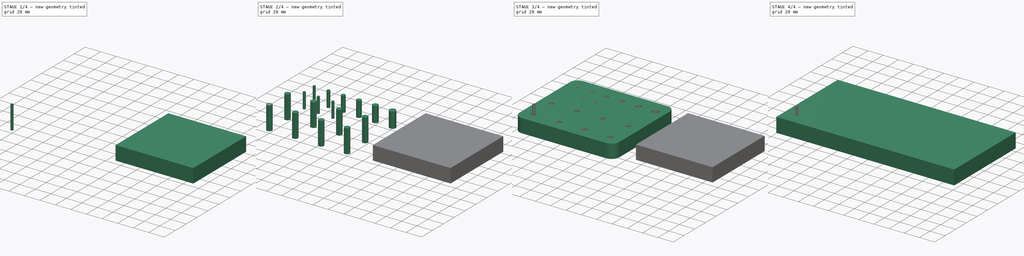
[diagram: build sequence overview — one tinted view per stage of 4, left to right]
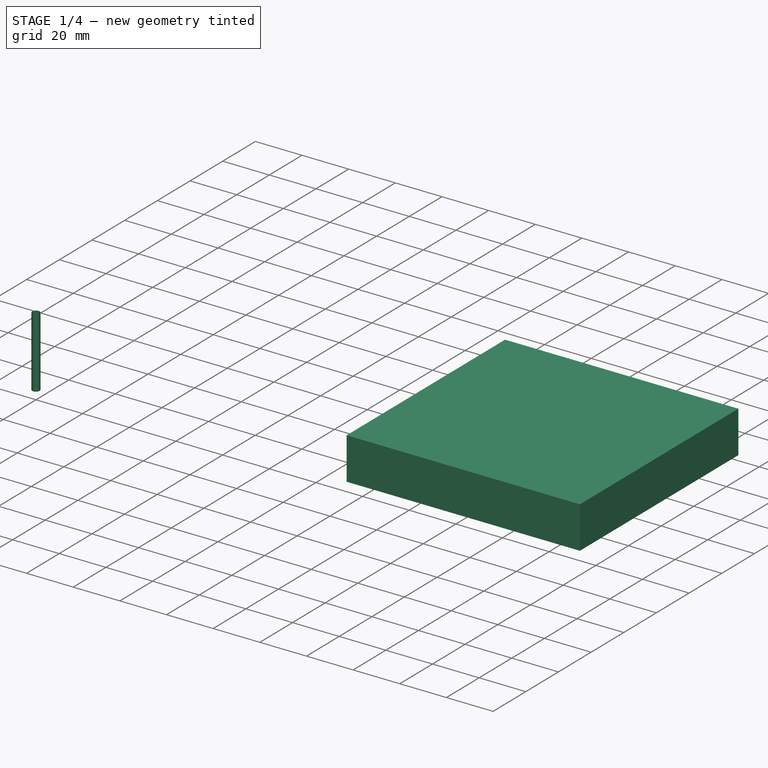
[diagram: stage 1 of 4 — iso view after this stage's code; geometry added in this stage tinted green]
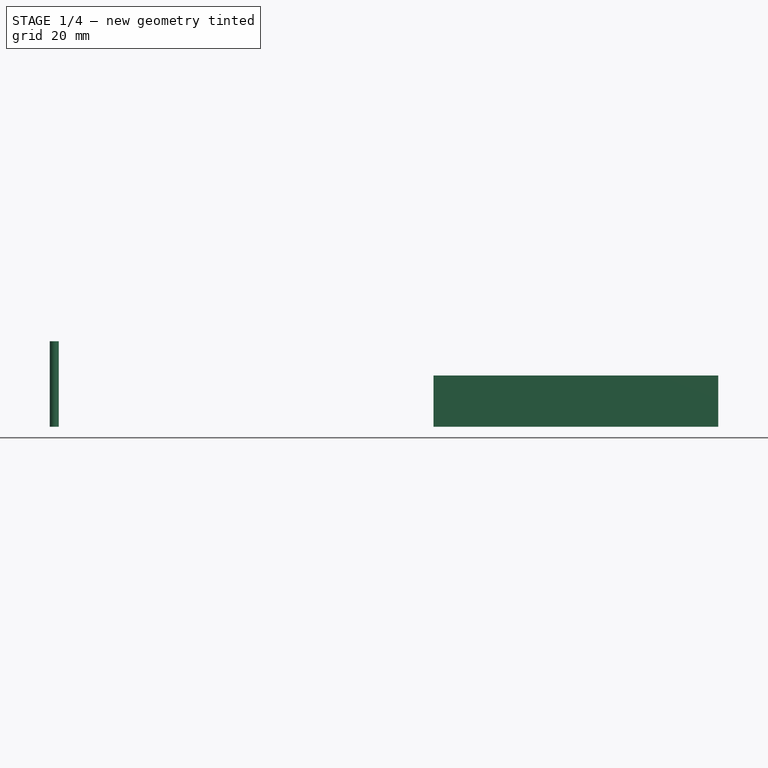
[diagram: stage 1 of 4 — front view after this stage's code; geometry added in this stage tinted green]
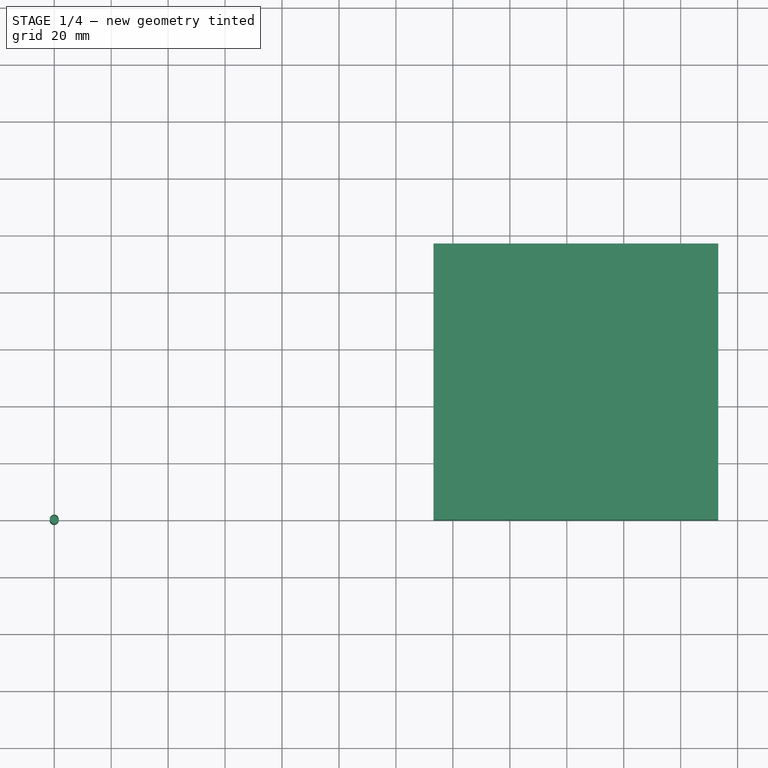
[diagram: stage 1 of 4 — top view after this stage's code; geometry added in this stage tinted green]
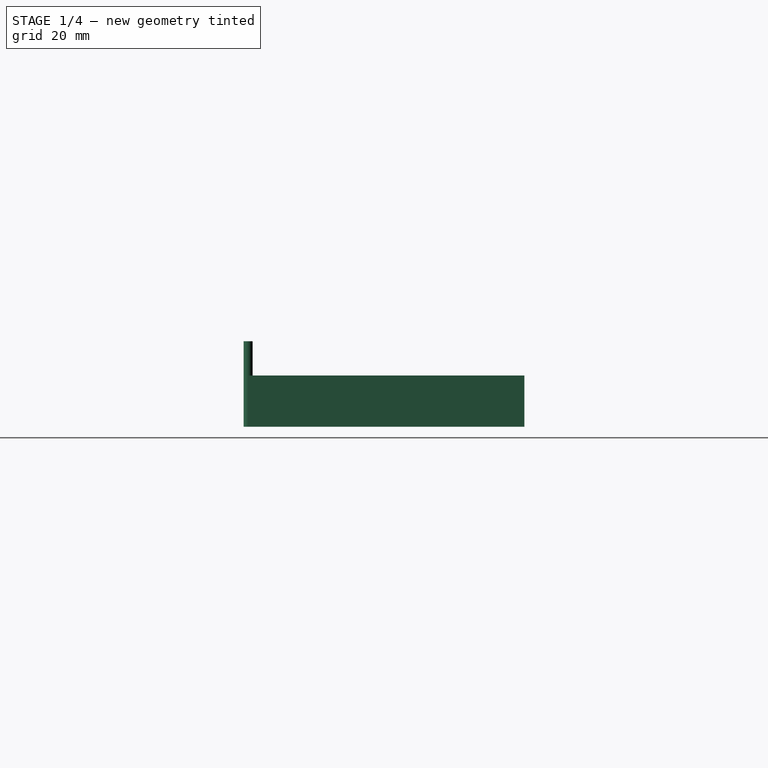
[diagram: stage 1 of 4 — right view after this stage's code; geometry added in this stage tinted green]
FCSTD DOCUMENT  (FreeCAD 0.22R34651 (Git))
Label: tools_panel1
License: All rights reserved
LicenseURL: http://en.wikipedia.org/wiki/All_rights_reserved
objects: Part::FeaturePython×8, Path::FeaturePython×6, Sketcher::SketchObject×3, App::DocumentObjectGroup×3, Part::Extrusion×2, PartDesign::Body×2, PartDesign::Pad×1, Part::Compound×1, PartDesign::Boolean×1, App::FeaturePython×1, App::Link×1
note: 21 computed .brp shape members not serialized (recipe doc carries the construction recipe); baked Part::Feature solids carry a one-line shape summary decoded from their .brp
EXTERNAL_REF file=../../../../mnt/share/Public/Documents/Детали_freecad/Крепление двигателя отводного вала отрезного станка.FCStd obj=Body002

FEATURE [Part::FeaturePython] ToolBit  label="3.175mm Endmill"  # Path/CAM toolbit (typed FeaturePython)
  BitPropertyNames = Chipload | CuttingEdgeHeight | Diameter | Flutes | Length | Material | ShankDiameter | SpindleDirection
  BitShape = <path>
  Chipload = 0
  CuttingEdgeHeight = 30
  Diameter = 3.17
  Flutes = 0
  Length = 10
  Material = 0
  ShankDiameter = 3
  ShapeName = endmill
  SpindleDirection = 0
FEATURE [Path::FeaturePython] __175mm_Endmill  label="3.175mm Endmill001"  # Path/CAM operation (typed FeaturePython)
  HorizFeed = 51.6667
  HorizRapid = 0
  SpindleDir = 0
  SpindleSpeed = 18000
  Tool = -> ToolBit
  ToolNumber = 1
  VertFeed = 16.6667
  VertRapid = 0
  expr: HorizRapid = SetupSheet.HorizRapid
  expr: VertRapid = SetupSheet.VertRapid
FEATURE [App::DocumentObjectGroup] Tools
  Group = -> [__175mm_Endmill]
FEATURE [Path::FeaturePython] Profile  # Path/CAM operation (typed FeaturePython)
  Active = true
  AreaParams:
    Tolerance = 1e-07
    FitArcs = True
    Simplify = False
    CleanDistance = 0.0
    Accuracy = 0.01
    Unit = 1.0
    MinArcPoints = 4
    MaxArcPoints = 100
    ClipperScale = 10000000.0
    Fill = 0
    Coplanar = 0
    Reorient = True
    Outline = False
    Explode = False
    OpenMode = 0
    Deflection = 0.01
    SubjectFill = 0
    ClipFill = 0
    Offset = -1.585
    ExtraPass = 0
    Stepover = 0.0
    LastStepover = 0.0
    JoinType = 0
    EndType = 0
    MiterLimit = 2.0
    RoundPrecision = 0.0
    PocketMode = 0
    ToolRadius = 1.0
    PocketExtraOffset = 0.0
    PocketStepover = 0.0
    PocketLastStepover = 0.0
    FromCenter = False
    Angle = 45.0
    AngleShift = 0.0
    Shift = 0.0
    Thicken = False
    SectionCount = -1
    Stepdown = 1.0
    SectionOffset = 0.0
    SectionTolerance = 1e-07
    SectionMode = 2
    Project = False
  Base = -> [Clone]
  ClearanceHeight = 24
  CoolantMode = 0
  CycleTime = 00:01:12
  Direction = 1
  FinalDepth = 0
  HandleMultipleFeatures = 0
  JoinType = 0
  MiterLimit = 0.1
  OffsetExtra = 0
  OpFinalDepth = 0
  OpStartDepth = 19
  OpStockZMax = 19
  OpStockZMin = 0
  OpToolDiameter = 3.17
  PathParams = {'orientation': 1, 'feedrate': 51.666666666666664, 'feedrate_v': 16.666666666666668, 'verbose': True, 'resume_height': 22.0, 'retraction': 24.0, 'return_end': True, 'preamble': False, 'start': Vector (79.74409036666665, 15.000000000000004, 24.0)}
  SafeHeight = 22
  Side = 0
  SplitArcs = false
  StartDepth = 19
  StartPoint = (0,0,0)
  StepDown = 3.17
  ToolController = -> __175mm_Endmill
  UseComp = true
  UseStartPoint = false
  processCircles = true
  processHoles = true
  processPerimeter = false
  expr: ClearanceHeight = OpStockZMax + SetupSheet.ClearanceHeightOffset
  expr: FinalDepth = OpFinalDepth
  expr: SafeHeight = OpStockZMax + SetupSheet.SafeHeightOffset
  expr: StartDepth = OpStartDepth
  expr: StepDown = OpToolDiameter
FEATURE [Path::FeaturePython] Profile001  # Path/CAM operation (typed FeaturePython)
  Active = true
  AreaParams:
    Tolerance = 1e-07
    FitArcs = True
    Simplify = False
    CleanDistance = 0.0
    Accuracy = 0.01
    Unit = 1.0
    MinArcPoints = 4
    MaxArcPoints = 100
    ClipperScale = 10000000.0
    Fill = 0
    Coplanar = 0
    Reorient = True
    Outline = False
    Explode = False
    OpenMode = 0
    Deflection = 0.01
    SubjectFill = 0
    ClipFill = 0
    Offset = 1.585
    ExtraPass = 0
    Stepover = 0.0
    LastStepover = 0.0
    JoinType = 0
    EndType = 0
    MiterLimit = 2.0
    RoundPrecision = 0.0
    PocketMode = 0
    ToolRadius = 1.0
    PocketExtraOffset = 0.0
    PocketStepover = 0.0
    PocketLastStepover = 0.0
    FromCenter = False
    Angle = 45.0
    AngleShift = 0.0
    Shift = 0.0
    Thicken = False
    SectionCount = -1
    Stepdown = 1.0
    SectionOffset = 0.0
    SectionTolerance = 1e-07
    SectionMode = 2
    Project = False
  ClearanceHeight = 24
  CoolantMode = 0
  CycleTime = 00:01:51
  Direction = 1
  FinalDepth = 0
  HandleMultipleFeatures = 0
  JoinType = 0
  MiterLimit = 0.1
  OffsetExtra = 0
  OpFinalDepth = 0
  OpStartDepth = 19
  OpStockZMax = 19
  OpStockZMin = 0
  OpToolDiameter = 3.17
  PathParams = {'orientation': 0, 'feedrate': 51.666666666666664, 'feedrate_v': 16.666666666666668, 'verbose': True, 'resume_height': 22.0, 'retraction': 24.0, 'return_end': True, 'preamble': False, 'start': Vector (128.1907173591758, 112.19109730355466, 24.0)}
  SafeHeight = 22
  Side = 0
  SplitArcs = false
  StartDepth = 19
  StartPoint = (0,0,0)
  StepDown = 3.17
  ToolController = -> __175mm_Endmill
  UseComp = true
  UseStartPoint = false
  processCircles = true
  processHoles = true
  processPerimeter = true
  expr: ClearanceHeight = OpStockZMax + SetupSheet.ClearanceHeightOffset
  expr: FinalDepth = OpFinalDepth
  expr: SafeHeight = OpStockZMax + SetupSheet.SafeHeightOffset
  expr: StartDepth = OpStartDepth
  expr: StepDown = OpToolDiameter
FEATURE [Path::FeaturePython] DressupDogbone  # Path/CAM operation (typed FeaturePython)
  Base = -> Profile
  Custom = 0
  Incision = 0
  Side = 0
  Style = 0
FEATURE [Path::FeaturePython] DressupTag  # Path/CAM operation (typed FeaturePython)
  Angle = 45
  Base = -> Profile001
  Height = 3.5
  Positions = (6) [(103.611,115.585,0),(131.585,13.3439,0),(131.584,93.1585,0),(234.785,9.2517,0),(234.785,86.5052,0),(13.2326,115.584,0)]
  Radius = 0
  SegmentationFactor = 50
  Width = 10
FEATURE [App::DocumentObjectGroup] Operations
  Group = -> [DressupDogbone,DressupTag]
FEATURE [App::Link] Link  label="Body002"
  LinkedObject = -> <external ../../../../mnt/share/Public/Documents/Детали_freecad/Крепление двигателя отводного вала отрезного станка.FCStd>#Body002
FEATURE [Part::FeaturePython] Clone001  label="Model-Body002"  # Draft clone (typed FeaturePython)
  AttacherType = Attacher::AttachEngine3D
  Fuse = false
  Objects = -> [Link]
  PathResource = Model
  Placement = pos=(133.2,0,0) rot=(0,0,1;0rad)
  Scale = (1,1,1)
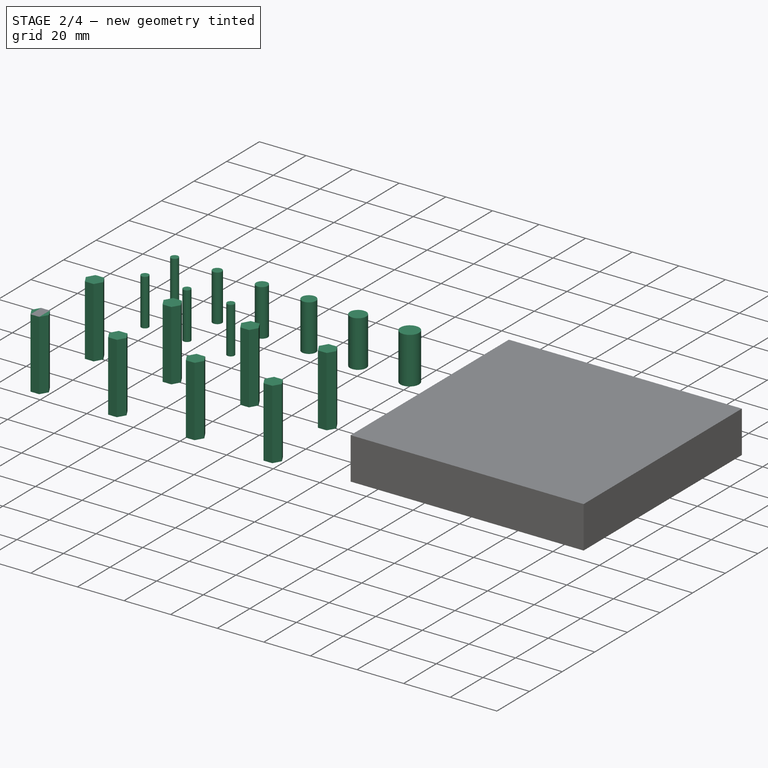
[diagram: stage 2 of 4 — iso view after this stage's code; geometry added in this stage tinted green]
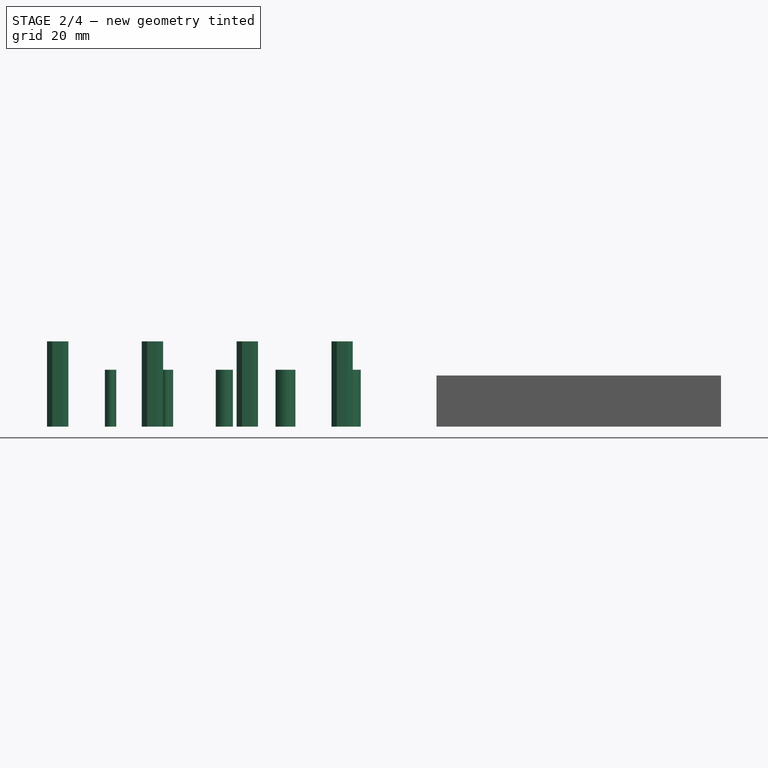
[diagram: stage 2 of 4 — front view after this stage's code; geometry added in this stage tinted green]
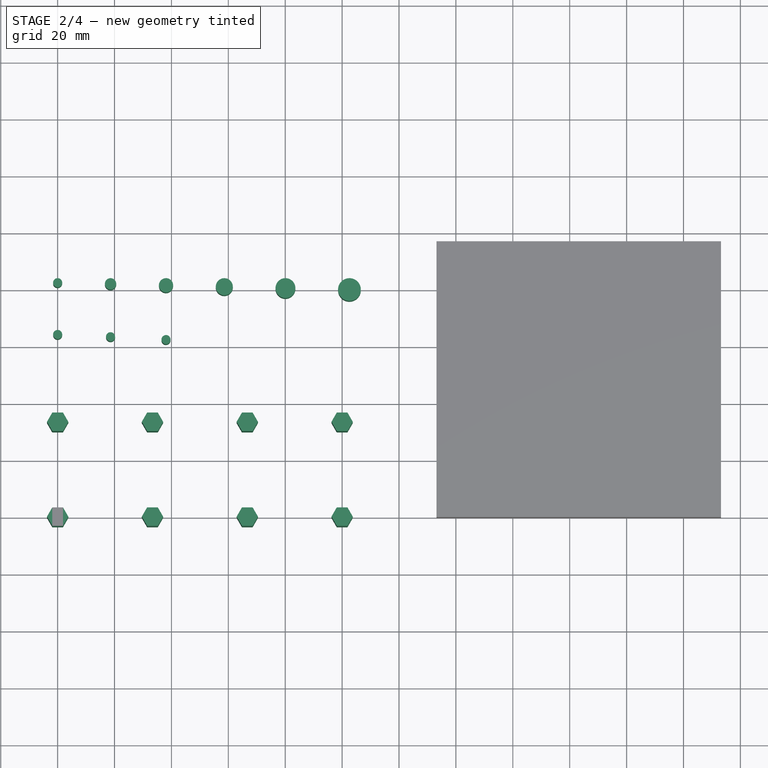
[diagram: stage 2 of 4 — top view after this stage's code; geometry added in this stage tinted green]
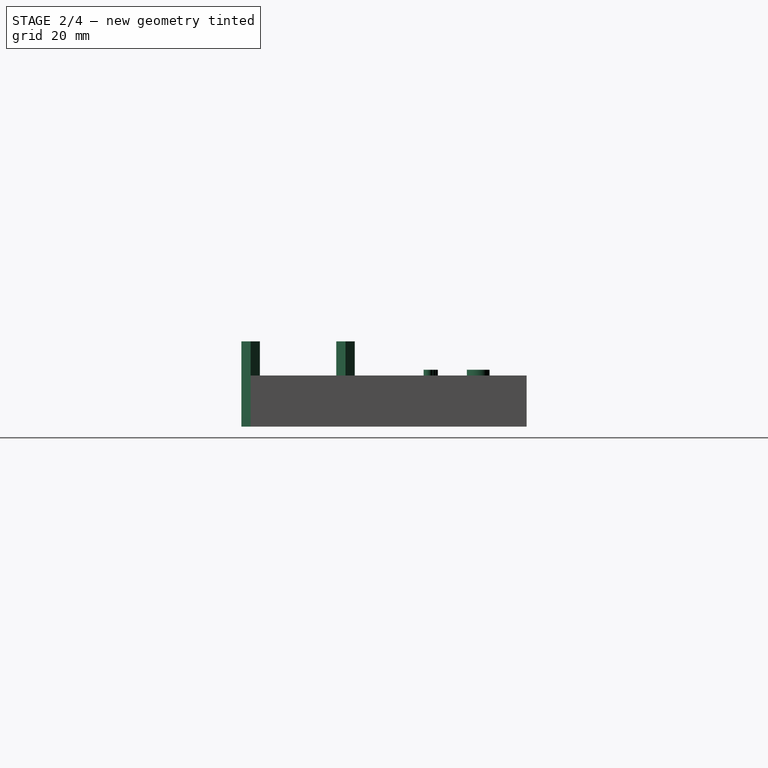
[diagram: stage 2 of 4 — right view after this stage's code; geometry added in this stage tinted green]
FEATURE [Sketcher::SketchObject] Sketch
  FullyConstrained = true
  MapMode = 5
  Support = -> [XY_Plane]
  expr: Constraints[7] = <<Sketch001>>.Placement.Base.y + 15 mm
  sketch-geometry (12):
    g0: LineSegment StartX=-5 StartY=-15 StartZ=0 EndX=105 EndY=-15 EndZ=0
    g1: LineSegment StartX=115 StartY=-5 StartZ=0 EndX=115 EndY=89 EndZ=0
    g2: LineSegment StartX=105 StartY=99 StartZ=0 EndX=-5 EndY=99 EndZ=0
    g3: LineSegment StartX=-15 StartY=89 StartZ=0 EndX=-15 EndY=-5 EndZ=0
    g4: ArcOfCircle CenterX=105 CenterY=89 CenterZ=0 NormalX=0 NormalY=0 NormalZ=1 AngleXU=0 Radius=10 StartAngle=0 EndAngle=1.5708
    g5: GeomPoint X=115 Y=99 Z=0
    g6: ArcOfCircle CenterX=-5 CenterY=89 CenterZ=0 NormalX=0 NormalY=0 NormalZ=1 AngleXU=0 Radius=10 StartAngle=1.5708 EndAngle=3.14159
    g7: GeomPoint X=-15 Y=99 Z=0
    g8: ArcOfCircle CenterX=-5 CenterY=-5 CenterZ=0 NormalX=0 NormalY=0 NormalZ=1 AngleXU=0 Radius=10 StartAngle=3.14159 EndAngle=4.71239
    g9: GeomPoint X=-15 Y=-15 Z=0
    g10: ArcOfCircle CenterX=105 CenterY=-5 CenterZ=0 NormalX=0 NormalY=0 NormalZ=1 AngleXU=0 Radius=10 StartAngle=4.71239 EndAngle=6.28319
    g11: GeomPoint X=115 Y=-15 Z=0
  constraints (28):
    c: Horizontal(g0)
    c: Horizontal(g2)
    c: Vertical(g1)
    c: Vertical(g3)
    c: DistanceX(g9) = -15
    c: DistanceY(g9) = -15
    c: DistanceX(g11) = 115
    c: DistanceY(g5) = 99
    c: PointOnObject(g5,g1)
    c: PointOnObject(g5,g2)
    c: Tangent(g1,g4) = -1.5708
    c: Tangent(g2,g4) = -1.5708
    c: PointOnObject(g7,g2)
    c: PointOnObject(g7,g3)
    c: Tangent(g2,g6) = -1.5708
    c: Tangent(g3,g6) = -1.5708
    c: PointOnObject(g9,g0)
    c: PointOnObject(g9,g3)
    c: Tangent(g0,g8) = -1.5708
    c: Tangent(g3,g8) = -1.5708
    c: PointOnObject(g11,g0)
    c: PointOnObject(g11,g1)
    c: Tangent(g0,g10) = -1.5708
    c: Tangent(g1,g10) = -1.5708
    c: Equal(g10,g4)
    c: Equal(g10,g6)
    c: Equal(g10,g8)
    c: Radius(g10) = 10
FEATURE [Sketcher::SketchObject] Sketch001
  FullyConstrained = false
  Placement = pos=(0,84,0) rot=(0,0,1;0rad)
  expr: Constraints[13] = .Constraints.distance_between_holes
  expr: Constraints[14] = .Constraints.distance_between_holes
  expr: Constraints[15] = .Constraints.distance_between_holes
  expr: Constraints[16] = .Constraints.distance_between_holes
  expr: Constraints[17] = .Constraints.distance_between_holes
  expr: Constraints[25] = .Constraints.distance_between_holes
  expr: Constraints[27] = .Constraints.distance_between_holes
  sketch-geometry (11):
    g0: Circle CenterX=0 CenterY=-1.6 CenterZ=0 NormalX=0 NormalY=0 NormalZ=1 AngleXU=0 Radius=1.6
    g1: Circle CenterX=18.5957 CenterY=-2 CenterZ=0 NormalX=0 NormalY=0 NormalZ=1 AngleXU=0 Radius=2
    g2: Circle CenterX=38.0893 CenterY=-2.5 CenterZ=0 NormalX=0 NormalY=0 NormalZ=1 AngleXU=0 Radius=2.5
    g3: Circle CenterX=58.5832 CenterY=-3 CenterZ=0 NormalX=0 NormalY=0 NormalZ=1 AngleXU=0 Radius=3
    g4: Circle CenterX=80.0774 CenterY=-3.5 CenterZ=0 NormalX=0 NormalY=0 NormalZ=1 AngleXU=0 Radius=3.5
    g5: Circle CenterX=102.572 CenterY=-4 CenterZ=0 NormalX=0 NormalY=0 NormalZ=1 AngleXU=0 Radius=4
    g6: Circle CenterX=0 CenterY=-19.8 CenterZ=0 NormalX=0 NormalY=0 NormalZ=1 AngleXU=0 Radius=1.6
    g7: LineSegment StartX=0 StartY=-57.8 StartZ=0 EndX=106.572 EndY=-57.8 EndZ=0
    g8: LineSegment StartX=106.572 StartY=-57.8 StartZ=0 EndX=106.572 EndY=0 EndZ=0
    g9: Circle CenterX=18.5957 CenterY=-20.6 CenterZ=0 NormalX=0 NormalY=0 NormalZ=1 AngleXU=0 Radius=1.6
    g10: Circle CenterX=38.0893 CenterY=-21.6 CenterZ=0 NormalX=0 NormalY=0 NormalZ=1 AngleXU=0 Radius=1.6
  constraints (33):
    c: Tangent(g0,g-1)
    c: Tangent(g1,g-1)
    c: Tangent(g2,g-1)
    c: Tangent(g3,g-1)
    c: Tangent(g4,g-1)
    c: Tangent(g5,g-1)
    c: Diameter(g0) = 3.2
    c: Diameter(g1) = 4
    c: Diameter(g2) = 5
    c: Diameter(g3) = 6
    c: Diameter(g4) = 7
    c: Diameter(g5) = 8
    c: Distance(g0,g1) = 15  'distance_between_holes'
    c: Distance(g1,g2) = 15
    c: Distance(g2,g3) = 15
    c: Distance(g4,g3) = 15
    c: Distance(g5,g4) = 15
    c: Distance(g6,g0) = 15
    c: PointOnObject(g0,g-2)
    c: PointOnObject(g7,g-2)
    c: Horizontal(g7)
    c: Coincident(g8,g7)
    c: PointOnObject(g8,g-1)
    c: Vertical(g8)
    c: Tangent(g8,g5)
    c: Distance(g9,g1) = 15
    c: Vertical(g9,g1)
    c: Distance(g10,g2) = 15
    c: Vertical(g10,g2)
    c: Equal(g6,g0)
    c: PointOnObject(g6,g-2)
    c: Equal(g10,g9)
    c: Equal(g9,g6)
FEATURE [Sketcher::SketchObject] Sketch002
  FullyConstrained = true
  sketch-geometry (7):
    g0: LineSegment StartX=3.75278 StartY=0 StartZ=0 EndX=1.87639 EndY=3.25 EndZ=0
    g1: LineSegment StartX=1.87639 StartY=3.25 StartZ=0 EndX=-1.87639 EndY=3.25 EndZ=0
    g2: LineSegment StartX=-1.87639 StartY=3.25 StartZ=0 EndX=-3.75278 EndY=-8.9e-15 EndZ=0
    g3: LineSegment StartX=-3.75278 StartY=-8.9e-15 StartZ=0 EndX=-1.87639 EndY=-3.25 EndZ=0
    g4: LineSegment StartX=-1.87639 StartY=-3.25 StartZ=0 EndX=1.87639 EndY=-3.25 EndZ=0
    g5: LineSegment StartX=1.87639 StartY=-3.25 StartZ=0 EndX=3.75278 EndY=0 EndZ=0
    g6: Circle CenterX=0 CenterY=0 CenterZ=0 NormalX=0 NormalY=0 NormalZ=1 AngleXU=0 Radius=3.75278
  constraints (16):
    c: Coincident(g0,g1)
    c: Coincident(g1,g2)
    c: Coincident(g2,g3)
    c: Coincident(g3,g4)
    c: Coincident(g4,g5)
    c: Coincident(g5,g0)
    c: Equal(g0, g1-g5) x5
    c: PointOnObject(g0,g6)
    c: PointOnObject(g1,g6)
    c: PointOnObject(g2,g6)
    c: PointOnObject(g3,g6)
    c: PointOnObject(g4,g6)
    c: PointOnObject(g5,g6)
    c: Coincident(g6,g-1)
    c: PointOnObject(g5,g-1)
    c: DistanceY(g4,g0) = 6.5
FEATURE [Part::FeaturePython] LinearArray001  # WARN: FeaturePython — macro-defined, semantics opaque (R4)
  Alignment = 0
  CellStart = A1
  Count = 4
  Dir = (1,0,0)
  DirIsDriven = true
  DistributionLaw = 0
  DrivenProperty = 1
  EndInclusive = true
  ExposePlacement = false
  GeneratorMode = 0
  MarkerShape = 1
  MarkerSize = 0
  NumElements = 4
  OrientMode = 1
  Point = (0,0,0)
  PointIsDriven = true
  Reverse = false
  SpanEnd = 100
  SpanStart = 0
  Step = 33.3333
  Type = lattice2LinearArray.LinearArray
  VSGVersion = 1
  Values = 0.0 | 33.333333333333336 | 66.66666666666667 | 100.0
  ValuesSource = 2
  isLattice = 1
FEATURE [Part::FeaturePython] LinearArray002  # WARN: FeaturePython — macro-defined, semantics opaque (R4)
  Alignment = 0
  CellStart = A1
  Count = 2
  Dir = (0,1,0)
  DirIsDriven = true
  DistributionLaw = 0
  DrivenProperty = 1
  EndInclusive = true
  ExposePlacement = false
  GeneratorMode = 1
  MarkerShape = 1
  MarkerSize = 0
  NumElements = 2
  OrientMode = 0
  Point = (0,0,0)
  PointIsDriven = true
  Reverse = false
  SpanEnd = 50
  SpanStart = 0
  Step = 33.3333
  Type = lattice2LinearArray.LinearArray
  VSGVersion = 1
  Values = 0.0 | 33.333333333333336
  ValuesSource = 2
  isLattice = 1
  expr: Step = LinearArray001.Step
FEATURE [Part::FeaturePython] Populate001  label="Populate LinearArray002 with LinearArray001"  # WARN: FeaturePython — macro-defined, semantics opaque (R4)
  Copying = 0
  ExposePlacement = false
  MarkerShape = 1
  MarkerSize = 0
  NumElements = 8
  Object = -> LinearArray001
  OutputCompounding = 0
  PlacementsTo = -> LinearArray002
  Referencing = 0
  Type = lattice2PopulateCopies.LatticePopulateCopies
  isLattice = 1
FEATURE [Part::Extrusion] Extrude
  Base = -> Sketch002
  Dir = (0,0,1)
  DirMode = 2
  FaceMakerClass = Part::FaceMakerBullseye
  LengthFwd = 30
  LengthRev = 0
  Solid = true
  Symmetric = false
FEATURE [Part::FeaturePython] Populate002  label="Populate Populate LinearArray002 with LinearArray001 with Extrude"  # WARN: FeaturePython — macro-defined, semantics opaque (R4)
  Copying = 0
  ExposePlacement = false
  MarkerShape = 1
  MarkerSize = 0
  NumElements = 0
  Object = -> Extrude
  OutputCompounding = 1
  PlacementsTo = -> Populate001
  Referencing = 0
  Type = lattice2PopulateCopies.LatticePopulateCopies
  isLattice = 0
FEATURE [Part::Extrusion] Extrude001
  Base = -> Sketch001
  Dir = (0,0,1)
  DirMode = 2
  FaceMakerClass = Part::FaceMakerBullseye
  LengthFwd = 20
  LengthRev = 0
  Solid = true
  Symmetric = false
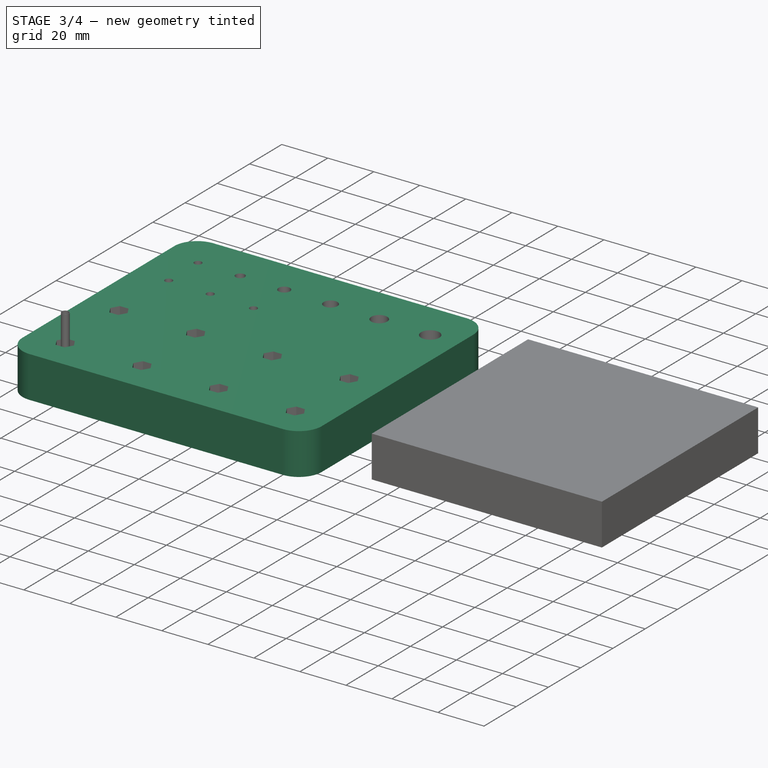
[diagram: stage 3 of 4 — iso view after this stage's code; geometry added in this stage tinted green]
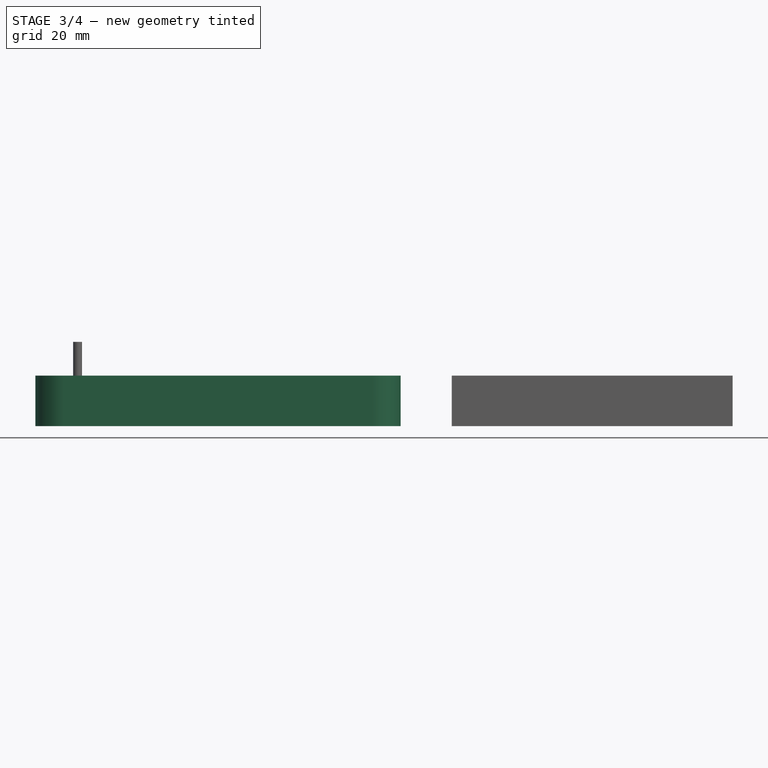
[diagram: stage 3 of 4 — front view after this stage's code; geometry added in this stage tinted green]
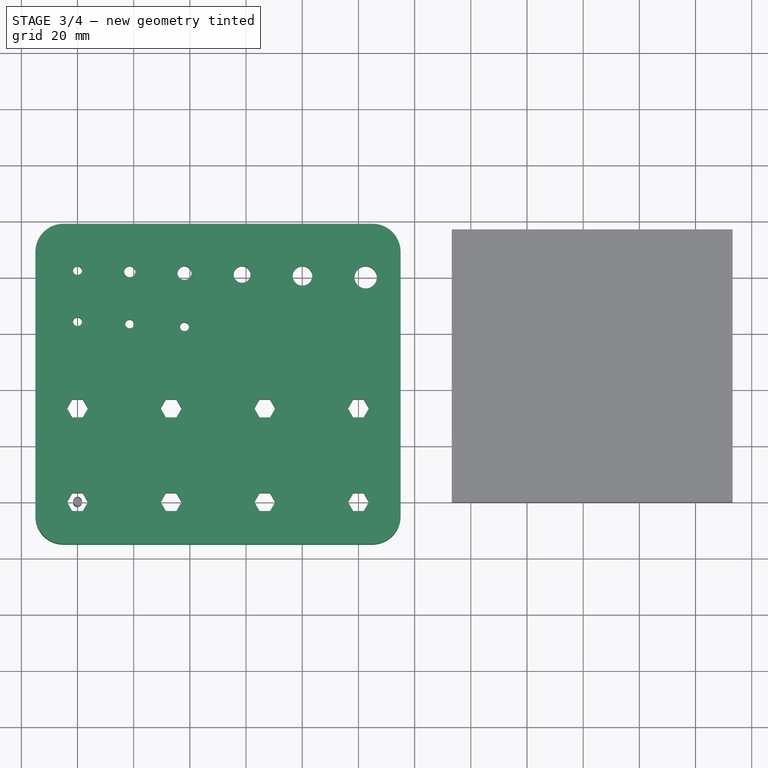
[diagram: stage 3 of 4 — top view after this stage's code; geometry added in this stage tinted green]
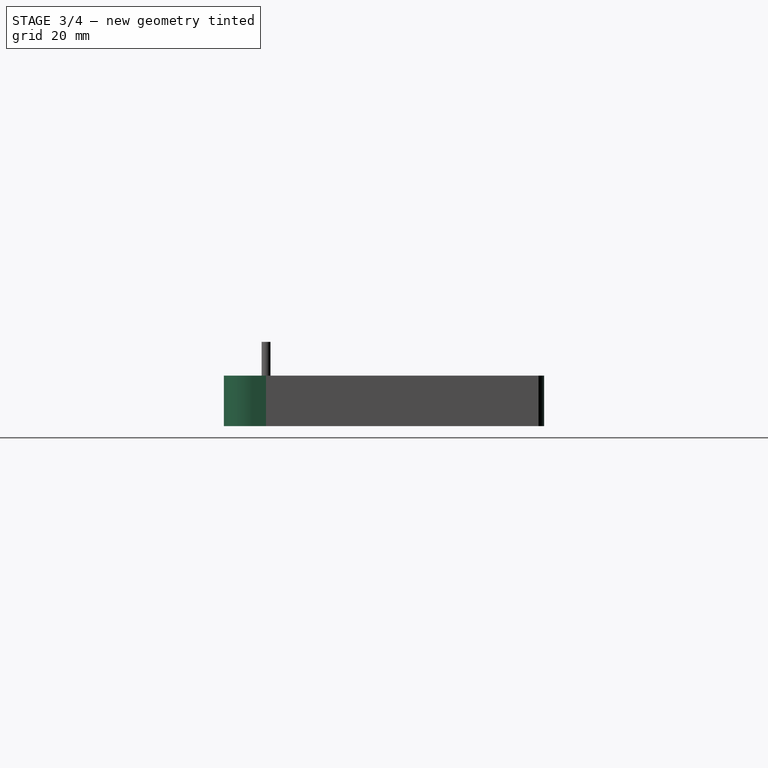
[diagram: stage 3 of 4 — right view after this stage's code; geometry added in this stage tinted green]
FEATURE [PartDesign::Pad] Pad
  Direction = (0,0,1)
  Length = 18
  Length2 = 10
  Profile = -> Sketch
  ReferenceAxis = -> Sketch [N_Axis]
  Type = 0
FEATURE [Part::Compound] Compound
  Links = -> [Populate002,Extrude001]
FEATURE [PartDesign::Body] Body001
  Origin = -> Origin001
FEATURE [PartDesign::Boolean] Boolean
  BaseFeature = -> Pad
  Group = -> [Compound]
  Type = 1
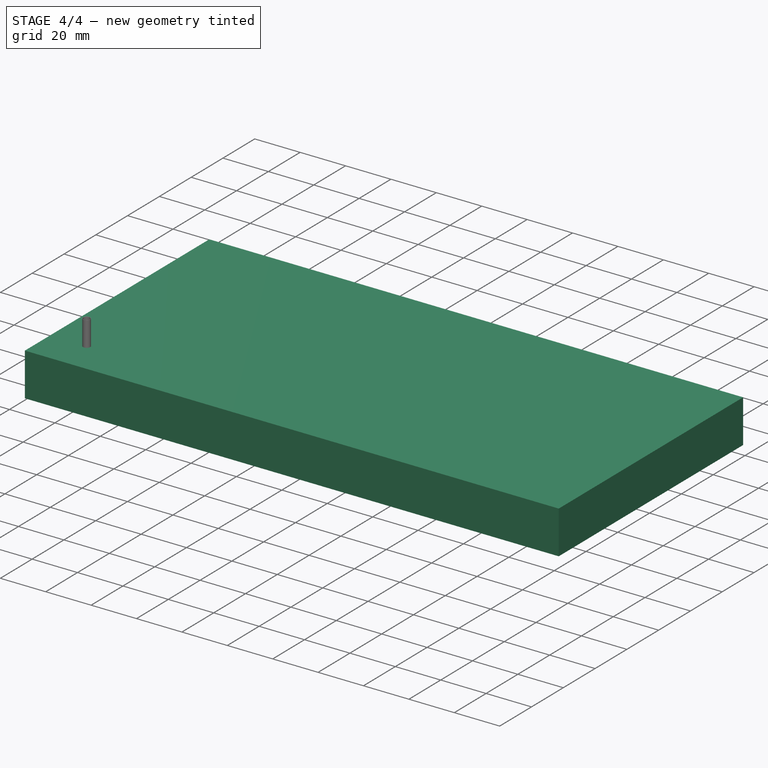
[diagram: stage 4 of 4 — iso view after this stage's code; geometry added in this stage tinted green]
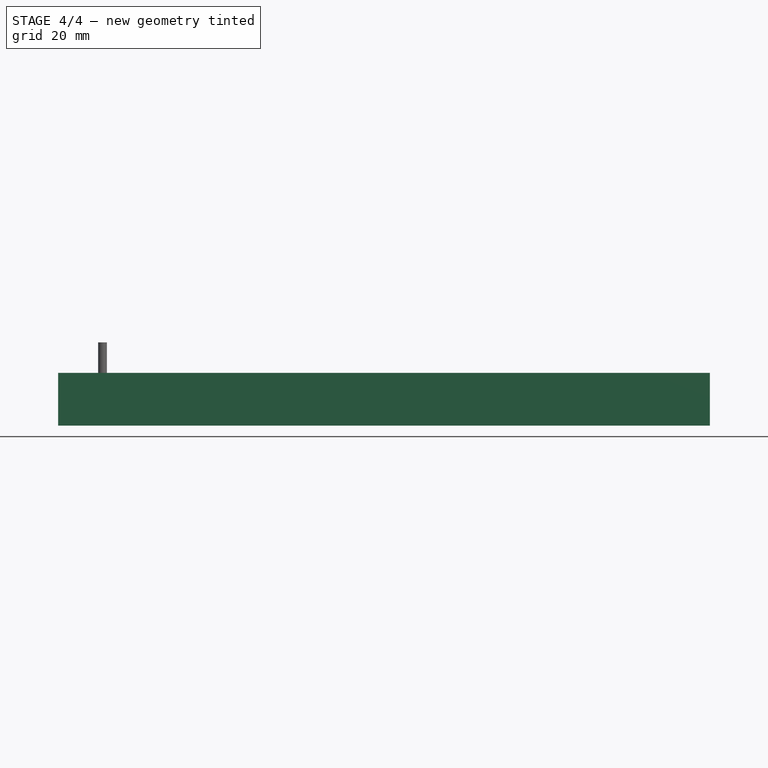
[diagram: stage 4 of 4 — front view after this stage's code; geometry added in this stage tinted green]
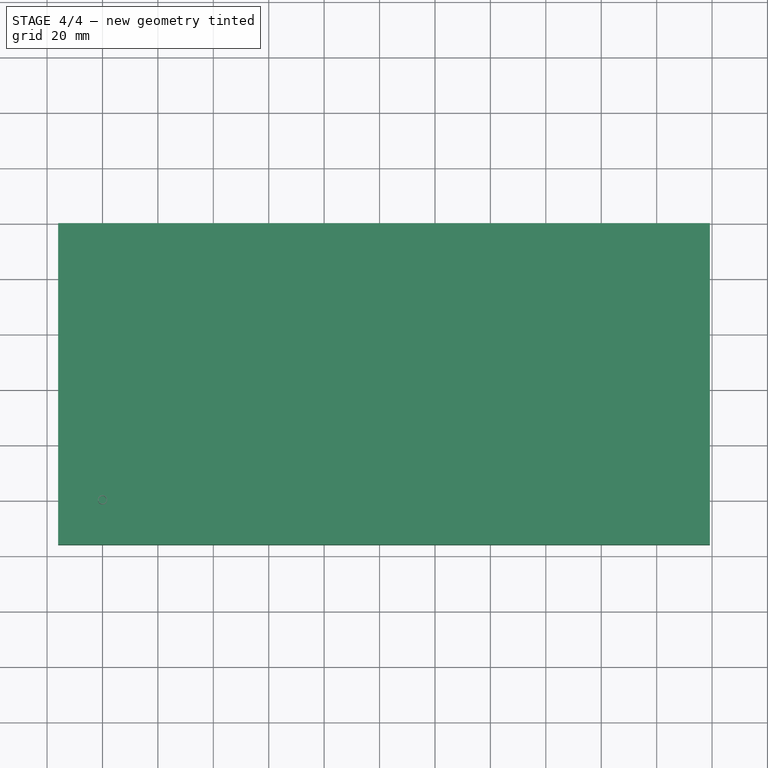
[diagram: stage 4 of 4 — top view after this stage's code; geometry added in this stage tinted green]
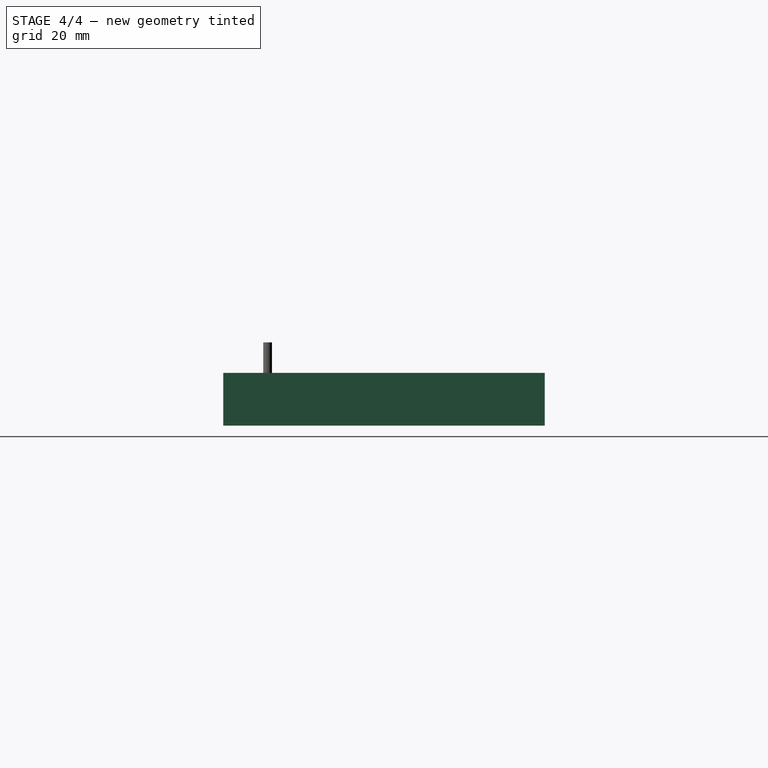
[diagram: stage 4 of 4 — right view after this stage's code; geometry added in this stage tinted green]
FEATURE [PartDesign::Body] Body
  Group = -> [Sketch,Pad,Boolean]
  Origin = -> Origin
  Tip = -> Boolean
FEATURE [App::FeaturePython] SetupSheet  # Path/CAM operation (typed FeaturePython)
  ClearanceHeightExpression = OpStockZMax+SetupSheet.ClearanceHeightOffset
  ClearanceHeightOffset = 5
  CoolantMode = 0
  CoolantModes = None | Flood | Mist
  FinalDepthExpression = OpFinalDepth
  HorizRapid = 0
  ProfileDirection = 1
  ProfileprocessCircles = true
  ProfileprocessHoles = true
  ProfileprocessPerimeter = true
  SafeHeightExpression = OpStockZMax+SetupSheet.SafeHeightOffset
  SafeHeightOffset = 3
  StartDepthExpression = OpStartDepth
  StepDownExpression = OpToolDiameter
  VertRapid = 0
FEATURE [Part::FeaturePython] Clone  label="Model-Body"  # Draft clone (typed FeaturePython)
  AttacherType = Attacher::AttachEngine3D
  Fuse = false
  Objects = -> [Body]
  PathResource = Model
  Placement = pos=(15,15,0) rot=(0,0,1;0rad)
  Scale = (1,1,1)
FEATURE [App::DocumentObjectGroup] Model
  Group = -> [Clone,Clone001]
FEATURE [Part::FeaturePython] Stock  # WARN: FeaturePython — macro-defined, semantics opaque (R4)
  Base = -> Model
  ExtXneg = 1
  ExtXpos = 1
  ExtYneg = 1
  ExtYpos = 1
  ExtZneg = 0
  ExtZpos = 1
  Placement = pos=(-15,-15,0) rot=(0,0,1;0rad)
  StockType = FromBase
FEATURE [Path::FeaturePython] Job  # Path/CAM operation (typed FeaturePython)
  CycleTime = 00:03:03
  Fixtures = G54
  GeometryTolerance = 0.01
  JobType = 0
  LastPostProcessDate = 2023-10-16 20:10:51.717204
  LastPostProcessOutput = <userpath>/2CAF-B51C/tools_panel1.tap
  Model = -> Model
  Operations = -> Operations
  OrderOutputBy = 0
  PostProcessor = 3
  PostProcessorOutputFile = %d.tap
  SetupSheet = -> SetupSheet
  SplitOutput = false
  Stock = -> Stock
  Tools = -> Tools
note: 1 file-system path scrubbed to <path> (originals preserved in the JSON sidecar)
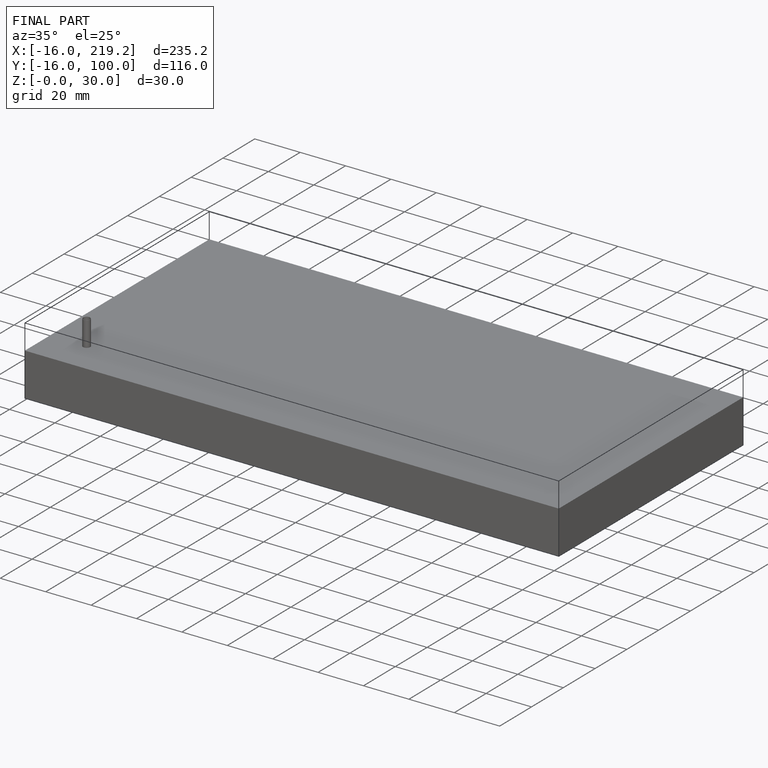
[diagram: finished part — iso view with bounding-box wireframe]
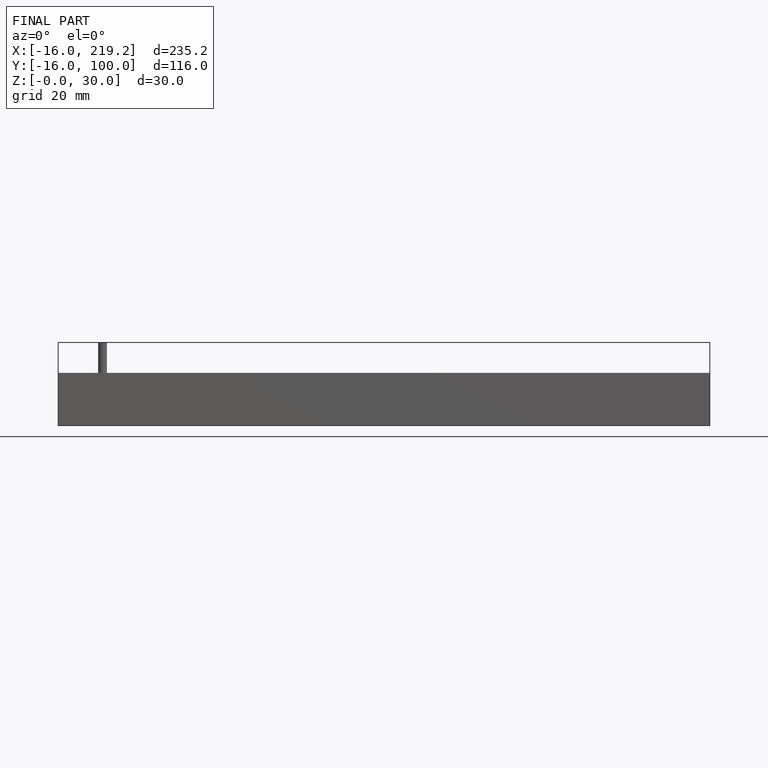
[diagram: finished part — front view with bounding-box wireframe]
